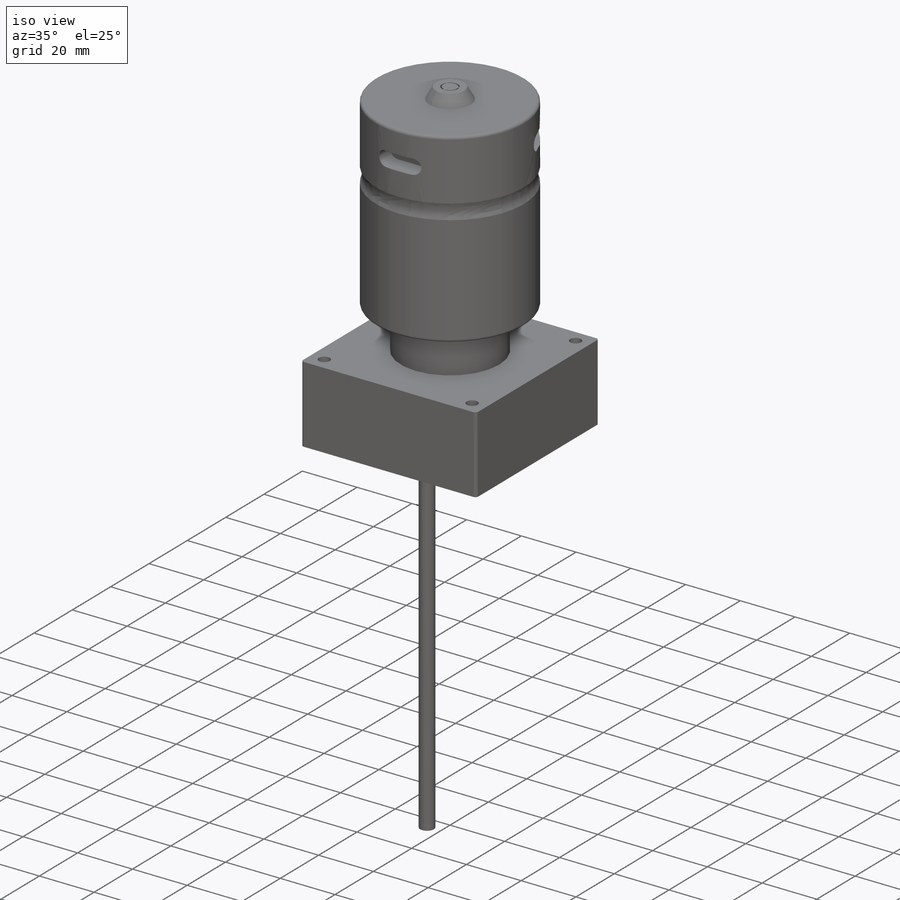
[diagram: iso view]
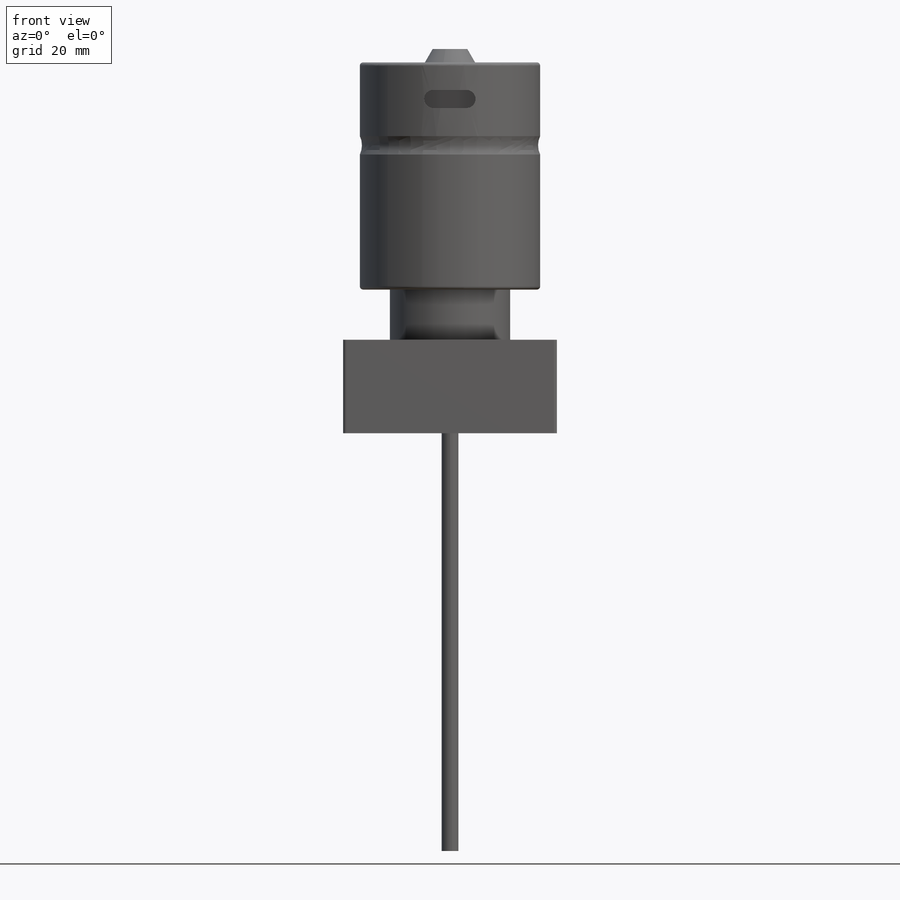
[diagram: front view]
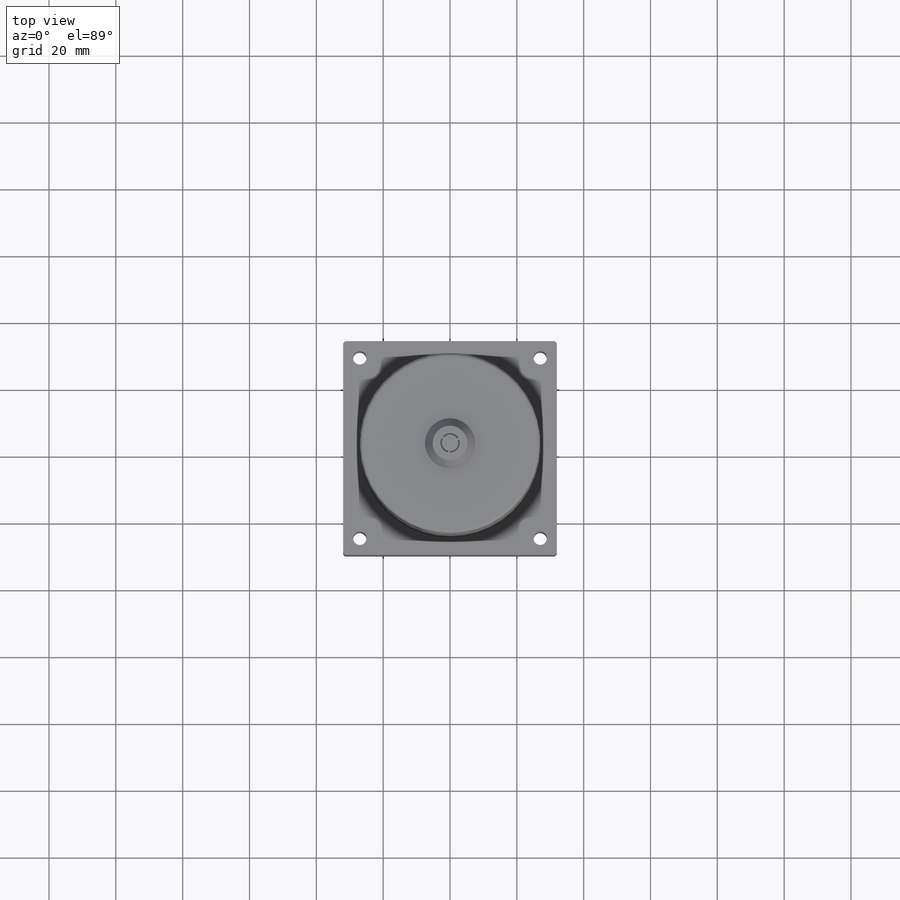
[diagram: top view]
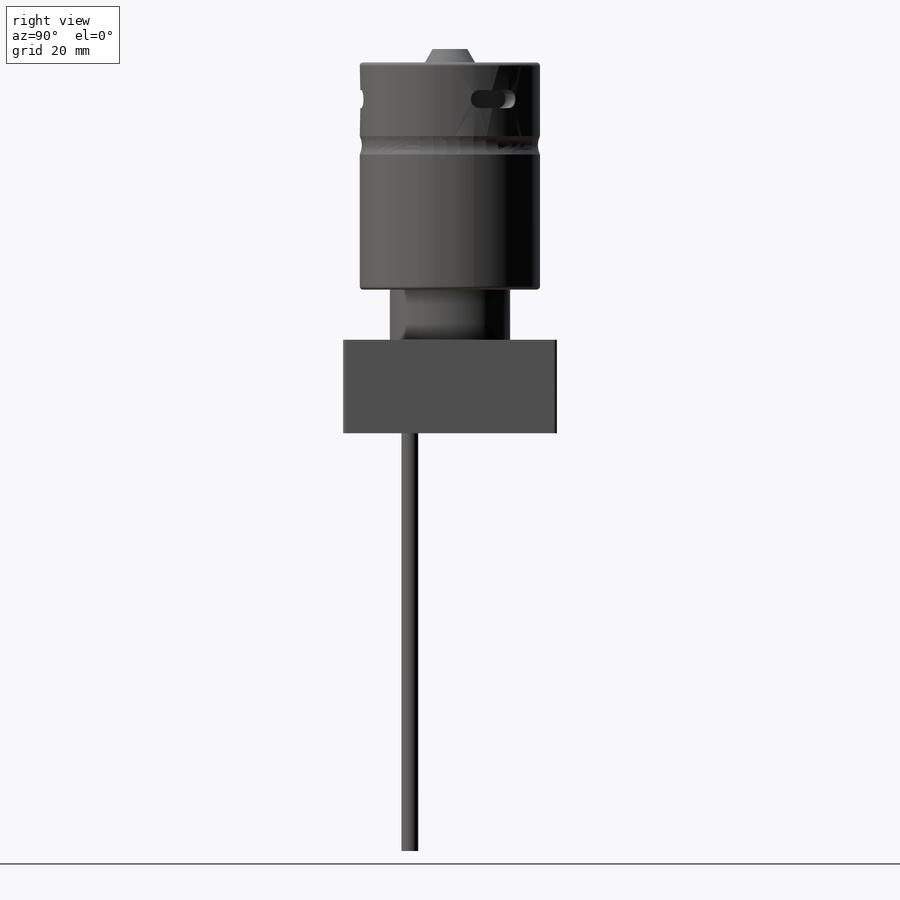
[diagram: right view]
SOLIDWORKS PART (.sldprt)
format: sldprt  version: not decoded by parser v0  size: 312,832 bytes
history: native  units: mm
features: sketch x9, extrude x5, cut_extrude x3, fillet x2, pattern_circular x2, material x1, cut_revolve x1, plane x1 (+12 scaffold rows collapsed)
feature tree (36):
  scaffold x12  (default folders/planes/origin — collapsed)
  material  "Material <not specified>"
  sketch  "Sketch1"  dims[D1=64.0mm]
  extrude  "Boss-Extrude1"  Depth=28mm
  sketch  "Sketch2"  dims[D1=~12.351714mm]
  extrude  "Boss-Extrude2"  Depth=15mm
  sketch  "Sketch3"  dims[D1=~26.326971mm]
  extrude  "Boss-Extrude3"  Depth=68mm
  fillet  "Fillet1"  Radius=1mm
  fillet  "Fillet2"  Radius=1mm
  sketch  "Sketch4"  dims[c1.D1=54.0mm c2.D1=4.0]
  cut_extrude  "Cut-Extrude1"  [1 undecoded]
  sketch  "Sketch5"  dims[D1=20.0mm]
  extrude  "Boss-Extrude4"  Depth=125mm
  sketch  "Sketch6"
  cut_revolve  "Cut-Revolve1"  Angle=360deg
  sketch  "Sketch7"  dims[D1=~7.624054mm]
  extrude  "Boss-Extrude5"  Depth=4mm
  plane  "Plane1"  Offset=30mm
  sketch  "Sketch8"  dims[D1=10.0mm D2=10.0mm]
  cut_extrude  "Cut-Extrude2"  Depth=10mm
  pattern_circular  "CirPattern1"  Count=3 Angle=360deg
  sketch  "Sketch9"  dims[c1.D1=~1.945534mm c2.D1=100.0deg]
  cut_extrude  "Cut-Extrude3"  Depth=10mm
  pattern_circular  "CirPattern2"  Count=3 Angle=360deg
decode coverage: 20 of 22 modeling features carry decoded parameters
note: ~ marks probable driven/reference dimensions
note: 1 parameter value undecoded
note: suppression state not decoded; provenance and decode notes live in map.json
